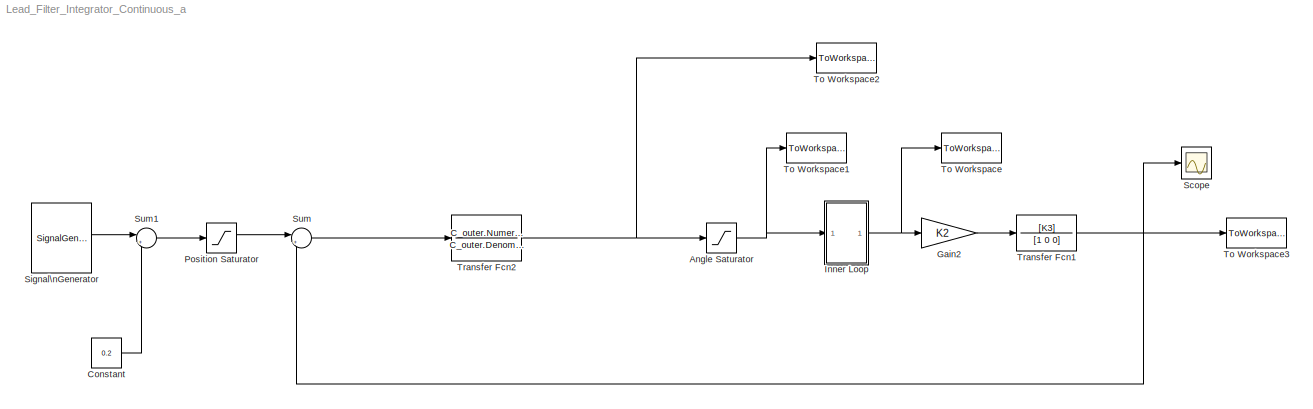
MODEL Lead_Filter_Integrator_Continuous_a
KIND model
BLOCK [Saturate] Angle Saturator
  InputPortMap = u0
  LowerLimit = -0.785
  Ports = [1, 1]
  SID = 3
  UpperLimit = 0.785
BLOCK [Constant] Constant
  SID = 28
  Value = 0.2
BLOCK [Gain] Gain2
  Gain = K2
  OutDataTypeStr = Inherit: Inherit via internal rule
  ParamDataTypeStr = Inherit: Inherit via internal rule
  SID = 24
  SaturateOnIntegerOverflow = off
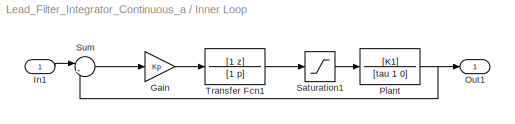
BLOCK [SubSystem] Inner Loop
  Ports = [1, 1]
  RequestExecContextInheritance = off
  SID = 18
  Variant = off
BLOCK [Gain] Inner Loop/Gain
  Gain = Kp
  OutDataTypeStr = Inherit: Inherit via internal rule
  ParamDataTypeStr = Inherit: Inherit via internal rule
  SID = 1
  SaturateOnIntegerOverflow = off
BLOCK [Inport] Inner Loop/In1
  IconDisplay = Port number
  SID = 19
BLOCK [Outport] Inner Loop/Out1
  IconDisplay = Port number
  SID = 20
BLOCK [TransferFcn] Inner Loop/Plant
  Denominator = [tau 1 0]
  Numerator = [K1]
  SID = 2
BLOCK [Saturate] Inner Loop/Saturation1
  InputPortMap = u0
  LowerLimit = -6
  Ports = [1, 1]
  SID = 4
  UpperLimit = 6
BLOCK [Sum] Inner Loop/Sum
  IconShape = round
  InputSameDT = off
  Inputs = |+-
  OutDataTypeStr = Inherit: Inherit via internal rule
  Ports = [2, 1]
  SID = 7
  SaturateOnIntegerOverflow = off
BLOCK [TransferFcn] Inner Loop/Transfer Fcn1
  Denominator = [1 p]
  Numerator = [1 z]
  SID = 11
BLOCK [Saturate] Position Saturator
  InputPortMap = u0
  LowerLimit = 0
  Ports = [1, 1]
  SID = 22
  UpperLimit = 0.417
BLOCK [Scope] Scope
  NumInputPorts = 1
  Ports = [1]
  SID = 5
  ScopeSpecificationString = Simulink.scopes.TimeScopeBlockCfg('CurrentConfiguration', extmgr.ConfigurationSet(extmgr.Configuration('Core','General UI',true),extmgr.Configuration('Core','Source UI',true),extmgr.Configuration('Sources','WiredSimulink',true),extmgr.Configuration('Visuals','Time Domain',true,'SerializedDisplays',{struct('MinYLimReal','-0.04017','MaxYLimReal','0.36156','YLabelReal','','MinYLimMag','0.00000','MaxY...<+1388ch>
BLOCK [SignalGenerator] Signal\nGenerator
  Amplitude = 0.05
  Frequency = 0.05
  Ports = [0, 1]
  SID = 30
  WaveForm = square
BLOCK [Sum] Sum
  IconShape = round
  InputSameDT = off
  Inputs = |+-
  OutDataTypeStr = Inherit: Inherit via internal rule
  Ports = [2, 1]
  SID = 21
  SaturateOnIntegerOverflow = off
BLOCK [Sum] Sum1
  IconShape = round
  InputSameDT = off
  Inputs = |++
  OutDataTypeStr = Inherit: Inherit via internal rule
  Ports = [2, 1]
  SID = 31
  SaturateOnIntegerOverflow = off
BLOCK [ToWorkspace] To Workspace
  FixptAsFi = on
  MaxDataPoints = inf
  Ports = [1]
  SID = 8
  SampleTime = -1
  Save2DSignal = 3-D array (concatenate along third dimension)
  SaveFormat = Timeseries
  VariableName = theta_out_cont
BLOCK [ToWorkspace] To Workspace1
  FixptAsFi = on
  MaxDataPoints = inf
  Ports = [1]
  SID = 9
  SampleTime = -1
  Save2DSignal = 3-D array (concatenate along third dimension)
  SaveFormat = Timeseries
  VariableName = filtered_contol_cont
BLOCK [ToWorkspace] To Workspace2
  FixptAsFi = on
  MaxDataPoints = inf
  Ports = [1]
  SID = 10
  SampleTime = -1
  Save2DSignal = 3-D array (concatenate along third dimension)
  SaveFormat = Timeseries
  VariableName = input_sig_cont
BLOCK [ToWorkspace] To Workspace3
  FixptAsFi = on
  MaxDataPoints = inf
  Ports = [1]
  SID = 26
  SampleTime = -1
  Save2DSignal = 3-D array (concatenate along third dimension)
  SaveFormat = Timeseries
  VariableName = ball_out_cont
BLOCK [TransferFcn] Transfer Fcn1
  Denominator = [1 0 0]
  Numerator = [K3]
  SID = 25
BLOCK [TransferFcn] Transfer Fcn2
  Denominator = C_outer.Denominator{1}
  Numerator = C_outer.Numerator{1}
  SID = 12
NET Angle Saturator:1 -> Inner Loop:1, To Workspace1:1
LINE Constant:1 -> Sum1:2
LINE Gain2:1 -> Transfer Fcn1:1
LINE Inner Loop/Gain:1 -> Inner Loop/Transfer Fcn1:1
LINE Inner Loop/In1:1 -> Inner Loop/Sum:1
NET Inner Loop/Plant:1 -> Inner Loop/Out1:1, Inner Loop/Sum:2
LINE Inner Loop/Saturation1:1 -> Inner Loop/Plant:1
LINE Inner Loop/Sum:1 -> Inner Loop/Gain:1
LINE Inner Loop/Transfer Fcn1:1 -> Inner Loop/Saturation1:1
NET Inner Loop:1 -> Gain2:1, To Workspace:1
LINE Position Saturator:1 -> Sum:1
LINE Signal\nGenerator:1 -> Sum1:1
LINE Sum1:1 -> Position Saturator:1
LINE Sum:1 -> Transfer Fcn2:1
NET Transfer Fcn1:1 -> Scope:1, Sum:2, To Workspace3:1
NET Transfer Fcn2:1 -> Angle Saturator:1, To Workspace2:1
note: NET lines group one-source signal fan-out (src -> all destinations, sorted); 1:1 wires keep LINE
